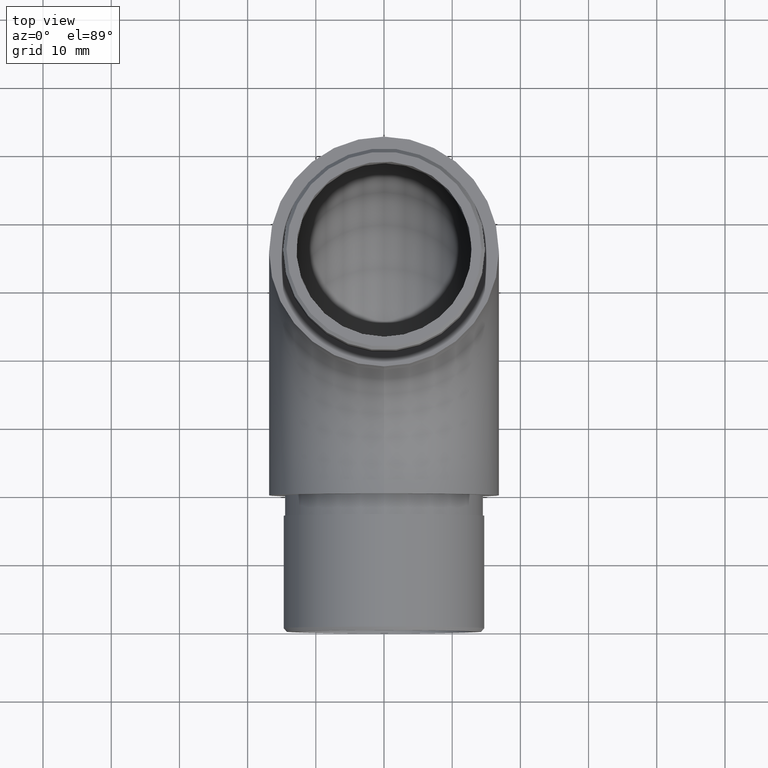
[diagram: clean part render]
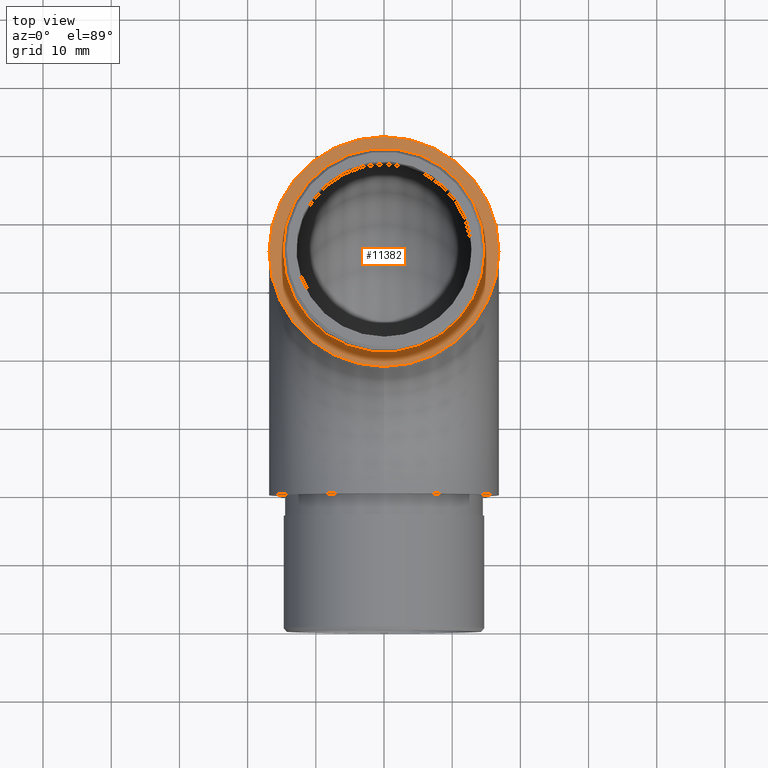
[diagram: same view with one face highlighted and labeled with its STEP entity id]
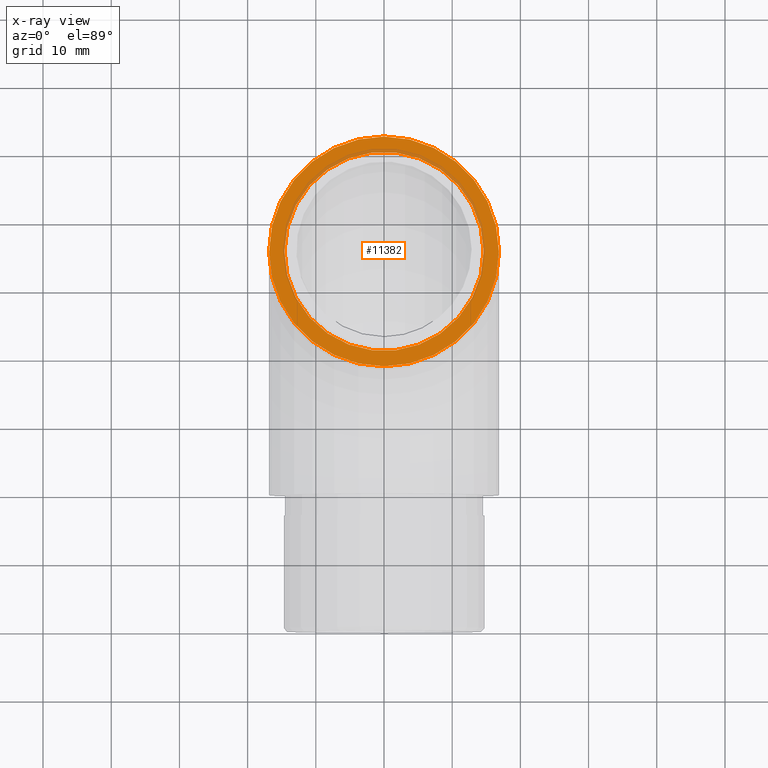
[diagram: x-ray of the same camera — body ghosted, the highlighted face saturated]
A machine part, top view. The second image highlights one B-rep face of the part: STEP entity #11382.
The next image is the same camera in x-ray: the body ghosted, the highlighted face saturated — about 10% of this face is hidden behind the body in this view.
In plain terms, the highlighted planar face has unit normal (0, 0, 1).
Its self-contained STEP definition (entity closure, byte-faithful):
#990 = DIRECTION ( 'NONE',  ( 0.0000000000000000000, 0.0000000000000000000, 1.000000000000000000 ) ) ;
#1121 = AXIS2_PLACEMENT_3D ( 'NONE', #9935, #990, #3982 ) ;
#1284 = EDGE_LOOP ( 'NONE', ( #6907 ) ) ;
#3523 = CARTESIAN_POINT ( 'NONE',  ( 0.0000000000000000000, 35.14999999999998400, 52.00000000000000000 ) ) ;
#3982 = DIRECTION ( 'NONE',  ( 1.000000000000000000, 0.0000000000000000000, 0.0000000000000000000 ) ) ;
#4828 = AXIS2_PLACEMENT_3D ( 'NONE', #5754, #7797, #5788 ) ;
#5571 = CIRCLE ( 'NONE', #1121, 14.60000000000000100 ) ;
#5754 = CARTESIAN_POINT ( 'NONE',  ( 0.0000000000000000000, 35.14999999999998400, 52.00000000000000000 ) ) ;
#5788 = DIRECTION ( 'NONE',  ( 0.0000000000000000000, -1.000000000000000000, 0.0000000000000000000 ) ) ;
#6334 = CARTESIAN_POINT ( 'NONE',  ( 0.0000000000000000000, 18.29999999999998600, 52.00000000000000000 ) ) ;
#6636 = AXIS2_PLACEMENT_3D ( 'NONE', #3523, #7211, #8317 ) ;
#6907 = ORIENTED_EDGE ( 'NONE', *, *, #8524, .T. ) ;
#7211 = DIRECTION ( 'NONE',  ( 0.0000000000000000000, 6.123233995736766000E-017, 1.000000000000000000 ) ) ;
#7627 = FACE_BOUND ( 'NONE', #9053, .T. ) ;
#7790 = EDGE_CURVE ( 'NONE', #11725, #11725, #5571, .T. ) ;
#7797 = DIRECTION ( 'NONE',  ( 0.0000000000000000000, 6.123233995736766000E-017, 1.000000000000000000 ) ) ;
#8317 = DIRECTION ( 'NONE',  ( 0.0000000000000000000, -1.000000000000000000, 6.123233995736766000E-017 ) ) ;
#8524 = EDGE_CURVE ( 'NONE', #8804, #8804, #10871, .T. ) ;
#8804 = VERTEX_POINT ( 'NONE', #6334 ) ;
#9053 = EDGE_LOOP ( 'NONE', ( #10757 ) ) ;
#9935 = CARTESIAN_POINT ( 'NONE',  ( 0.0000000000000000000, 35.14999999999999900, 52.00000000000000000 ) ) ;
#10553 = FACE_OUTER_BOUND ( 'NONE', #1284, .T. ) ;
#10757 = ORIENTED_EDGE ( 'NONE', *, *, #7790, .F. ) ;
#10871 = CIRCLE ( 'NONE', #4828, 16.85000000000000100 ) ;
#11382 = ADVANCED_FACE ( 'NONE', ( #10553, #7627 ), #12126, .T. ) ;
#11725 = VERTEX_POINT ( 'NONE', #12022 ) ;
#12022 = CARTESIAN_POINT ( 'NONE',  ( 14.60000000000000100, 35.14999999999999900, 52.00000000000000000 ) ) ;
#12126 = PLANE ( 'NONE',  #6636 ) ;